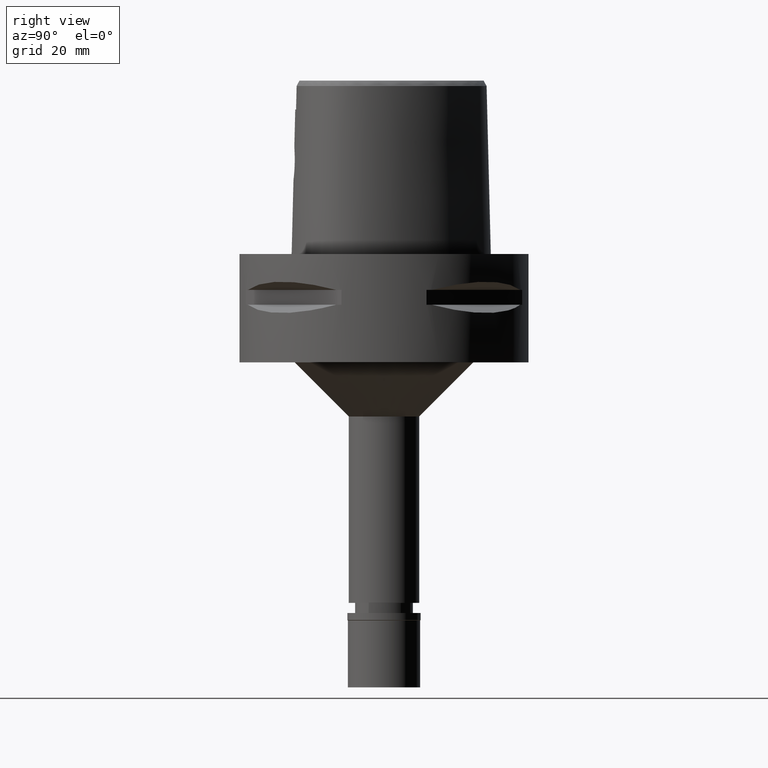
[diagram: clean part render]
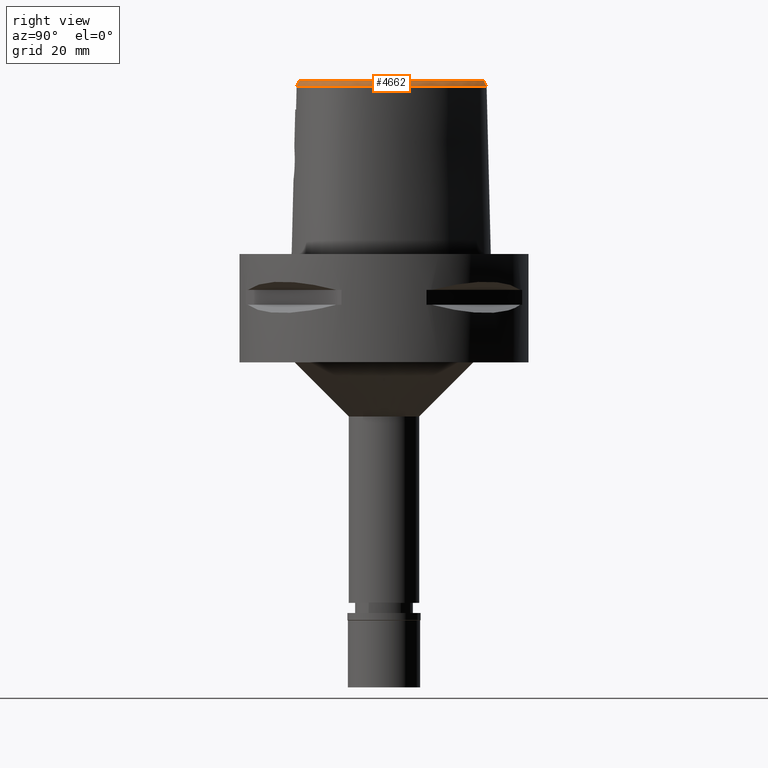
[diagram: same view with one face highlighted and labeled with its STEP entity id]
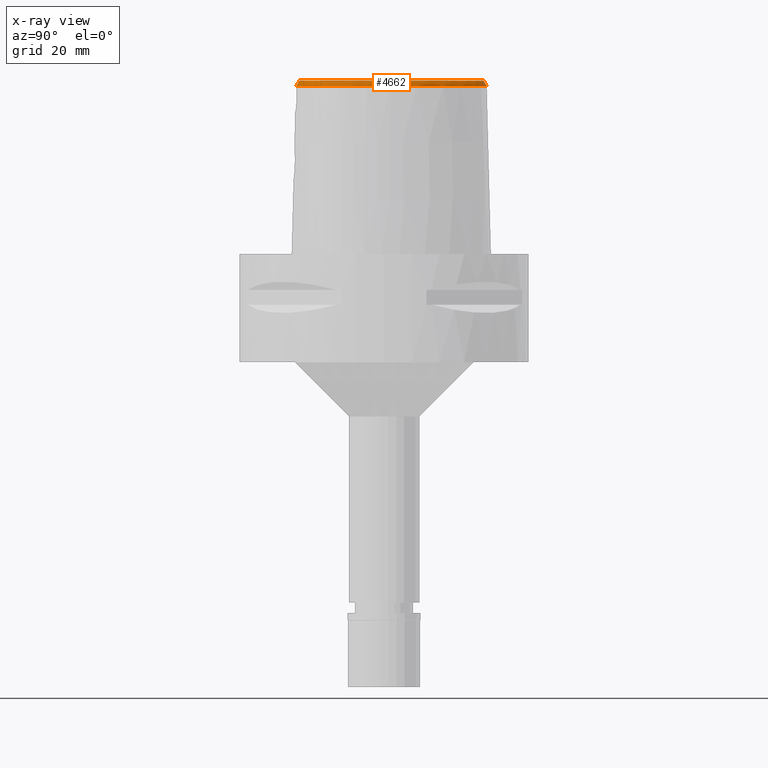
[diagram: x-ray of the same camera — body ghosted, the highlighted face saturated]
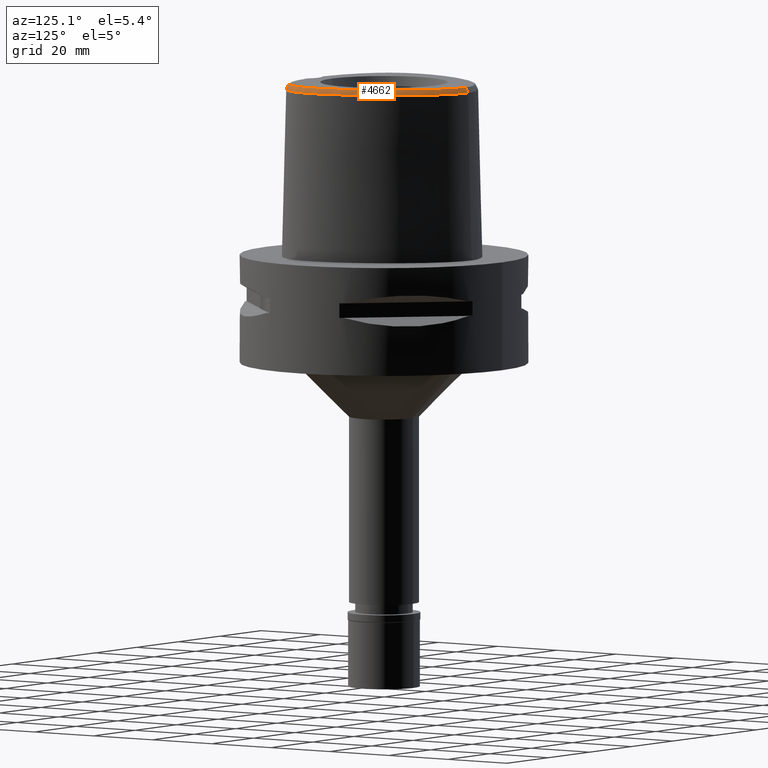
[diagram: same view with one face highlighted and labeled with its STEP entity id]
A machine part, right view. The second image highlights one B-rep face of the part: STEP entity #4662.
The next image is the same camera in x-ray: the body ghosted, the highlighted face saturated — about 0% of this face is hidden behind the body in this view.
A second angle (auxiliary view) of the same face is appended — the face is thin or edge-on in the first view.
In plain terms, the highlighted face is a freeform B-spline surface patch.
Its self-contained STEP definition (entity closure, byte-faithful):
#6 = CARTESIAN_POINT ( 'NONE',  ( 13.85576772161000036, -22.32209122815000057, 46.31441630059000403 ) ) ;
#14 = CARTESIAN_POINT ( 'NONE',  ( 11.07918744940879918, 23.03051546725049903, 48.00000000000628120 ) ) ;
#31 = CARTESIAN_POINT ( 'NONE',  ( 10.90351781564999989, -23.21962009455999976, 46.31441595781000586 ) ) ;
#40 = CARTESIAN_POINT ( 'NONE',  ( 17.68852893098051737, 16.00958332231810388, 48.00000000001046629 ) ) ;
#58 = CARTESIAN_POINT ( 'NONE',  ( 25.22424870847000022, -10.04387941804999862, 48.20627270629000094 ) ) ;
#80 = CARTESIAN_POINT ( 'NONE',  ( 19.47437342419999950, -19.59445845150000309, 46.31441687065999702 ) ) ;
#89 = CARTESIAN_POINT ( 'NONE',  ( 20.51253914624933827, -17.67119446945637051, 47.99999999999860734 ) ) ;
#104 = CARTESIAN_POINT ( 'NONE',  ( 23.00758382300000093, -15.51116720037000007, 47.57565391237000085 ) ) ;
#125 = CARTESIAN_POINT ( 'NONE',  ( 25.11548101324999749, -11.68842953459000178, 47.57565384202999326 ) ) ;
#128 = CARTESIAN_POINT ( 'NONE',  ( 24.69258566271064126, -14.08975149522348325, 46.52069831738066341 ) ) ;
#150 = CARTESIAN_POINT ( 'NONE',  ( 19.91343998928999781, -18.43218803023999897, 47.57565388201999923 ) ) ;
#172 = CARTESIAN_POINT ( 'NONE',  ( 20.28846363325000013, 13.19930123828000035, 46.94503488952000225 ) ) ;
#196 = CARTESIAN_POINT ( 'NONE',  ( 25.62623769317999844, -7.343848543116999750, 48.20627258417000149 ) ) ;
#224 = CARTESIAN_POINT ( 'NONE',  ( 24.70032576391000134, 4.867242925703999745, 46.31441564155999657 ) ) ;
#248 = CARTESIAN_POINT ( 'NONE',  ( 22.16917301694000031, 9.837493690520002332, 46.94503613836000255 ) ) ;
#274 = CARTESIAN_POINT ( 'NONE',  ( 25.84119712001000124, -2.765125388364999992, 47.57565382063999948 ) ) ;
#298 = CARTESIAN_POINT ( 'NONE',  ( 19.54460083040000029, 15.01039940345000190, 46.31441677993999662 ) ) ;
#302 = CARTESIAN_POINT ( 'NONE',  ( 5.613914351056999763, -23.13750946505999906, 48.20627251340000186 ) ) ;
#324 = CARTESIAN_POINT ( 'NONE',  ( 8.965406432694999594, 24.43000248098000071, 48.20627268468999915 ) ) ;
#328 = CARTESIAN_POINT ( 'NONE',  ( 13.50235761773000043, -21.32248574316000145, 48.20627264746000407 ) ) ;
#348 = CARTESIAN_POINT ( 'NONE',  ( 16.77344729585999872, 17.59376904227999816, 47.57565364347999548 ) ) ;
#355 = CARTESIAN_POINT ( 'NONE',  ( 4.448049616147999430, -24.32322031909000160, 46.31441775807000027 ) ) ;
#365 = CARTESIAN_POINT ( 'NONE',  ( 12.14811716929812313, 22.13187320258825608, 48.00000000000350298 ) ) ;
#377 = CARTESIAN_POINT ( 'NONE',  ( 17.59532339224999831, 15.94121193564000016, 48.20627262879000341 ) ) ;
#384 = CARTESIAN_POINT ( 'NONE',  ( 10.81575074685999915, -22.87728721434999812, 46.94503486834999961 ) ) ;
#392 = CARTESIAN_POINT ( 'NONE',  ( -2.553072304996999878E-11, 27.58331912251000162, 48.00000000000000000 ) ) ;
#404 = CARTESIAN_POINT ( 'NONE',  ( 12.30536242051000073, 22.31027902599999990, 47.57565438514999556 ) ) ;
#410 = CARTESIAN_POINT ( 'NONE',  ( 12.43148039263999927, -22.79093464003999969, 46.31441633799000357 ) ) ;
#428 = CARTESIAN_POINT ( 'NONE',  ( 1.474701629074999909, 28.09726120632999979, 46.94503438112000282 ) ) ;
#435 = CARTESIAN_POINT ( 'NONE',  ( 23.74418773913000180, -15.12048386276999956, 46.94503477415999981 ) ) ;
#443 = VERTEX_POINT ( 'NONE', #4578 ) ;
#446 = CARTESIAN_POINT ( 'NONE',  ( 22.45659887780338693, 7.877591736060503891, 48.00000000001048051 ) ) ;
#461 = CARTESIAN_POINT ( 'NONE',  ( 25.88263361629999793, -8.347647910785999770, 47.57565381184999609 ) ) ;
#472 = CARTESIAN_POINT ( 'NONE',  ( 25.74155027847782051, -7.352132003090151358, 48.00000000000957812 ) ) ;
#484 = CARTESIAN_POINT ( 'NONE',  ( 26.25722304522000172, -10.28340957596000038, 46.31441581988000422 ) ) ;
#493 = CARTESIAN_POINT ( 'NONE',  ( 22.82172265263941568, -15.36274108901803004, 48.00000000000577671 ) ) ;
#506 = CARTESIAN_POINT ( 'NONE',  ( 24.21531866421999979, -13.70885405814000180, 47.57565383122999947 ) ) ;
#522 = CARTESIAN_POINT ( 'NONE',  ( -0.5416918147917999526, 28.51943464288000385, 46.31441584485000362 ) ) ;
#530 = CARTESIAN_POINT ( 'NONE',  ( 11.00676983696999933, 22.94040821629999982, 48.20627271301000150 ) ) ;
#534 = CARTESIAN_POINT ( 'NONE',  ( 22.20488947998000029, -16.93994461135999785, 46.94503482277000472 ) ) ;
#548 = CARTESIAN_POINT ( 'NONE',  ( 1.434792815007000177, 27.74604470246000076, 47.57565358290000290 ) ) ;
#558 = CARTESIAN_POINT ( 'NONE',  ( 4.472216720976999405, -24.20009030094000124, 46.52069014668999358 ) ) ;
#562 = CARTESIAN_POINT ( 'NONE',  ( 25.24778593493999779, 3.228870583332999811, 46.31441594303000642 ) ) ;
#564 = CARTESIAN_POINT ( 'NONE',  ( 26.04423705949246681, -10.88022456237710678, 46.52069972612039095 ) ) ;
#585 = CARTESIAN_POINT ( 'NONE',  ( 25.61318496804999967, -4.052864597641999467, 48.20627264257000633 ) ) ;
#602 = CARTESIAN_POINT ( 'NONE',  ( -0.5273145104577999787, 28.16636458666999943, 46.94503479764999554 ) ) ;
#612 = CARTESIAN_POINT ( 'NONE',  ( 25.29775356719000001, -1.488173254418000191, 48.20627267388000092 ) ) ;
#638 = CARTESIAN_POINT ( 'NONE',  ( 25.67254828931999810, -5.221307915878000472, 48.20627270195999614 ) ) ;
#662 = CARTESIAN_POINT ( 'NONE',  ( 25.49042645850000000, -2.808321824967999980, 48.20627266910000230 ) ) ;
#688 = CARTESIAN_POINT ( 'NONE',  ( 6.156089708281999862, 26.00563060993000164, 48.20627263499000037 ) ) ;
#691 = CARTESIAN_POINT ( 'NONE',  ( 17.34854646754000029, -20.42821447669000179, 46.94503487392999830 ) ) ;
#710 = CARTESIAN_POINT ( 'NONE',  ( 6.453958481201000019, 26.64669904928999955, 46.94503514667999866 ) ) ;
#715 = CARTESIAN_POINT ( 'NONE',  ( 12.32872915219000021, -22.45279268088000180, 46.94503510628999976 ) ) ;
#724 = CARTESIAN_POINT ( 'NONE',  ( 25.41171405094078395, -1.468769615953190444, 48.00000000001066525 ) ) ;
#735 = CARTESIAN_POINT ( 'NONE',  ( 9.160033193242998806, 24.72501356603000033, 47.57565378860999772 ) ) ;
#741 = CARTESIAN_POINT ( 'NONE',  ( 7.551502373301000048, -23.92657784618000250, 46.31441589324000319 ) ) ;
#762 = CARTESIAN_POINT ( 'NONE',  ( 16.49748301990000243, 17.37301305296000109, 48.20627275522999611 ) ) ;
#769 = CARTESIAN_POINT ( 'NONE',  ( 17.02210617220000088, -19.80124792960999969, 48.20627268831999857 ) ) ;
#792 = CARTESIAN_POINT ( 'NONE',  ( 7.994549486734999988, 25.03633378518999919, 48.20627267816000483 ) ) ;
#799 = CARTESIAN_POINT ( 'NONE',  ( 12.22597791173000026, -22.11465072172999768, 47.57565387459000306 ) ) ;
#808 = LINE ( 'NONE', #5117, #2869 ) ;
#821 = CARTESIAN_POINT ( 'NONE',  ( 24.15590464747999988, -14.50492984673999963, 46.94503470784999877 ) ) ;
#832 = CARTESIAN_POINT ( 'NONE',  ( 18.76051936065131898, 14.48366014233184451, 48.00000000001169553 ) ) ;
#847 = CARTESIAN_POINT ( 'NONE',  ( 21.81411768448999666, -17.80015916760000039, 46.31441579266999753 ) ) ;
#877 = CARTESIAN_POINT ( 'NONE',  ( 25.53184518854000018, -8.304358813511999671, 48.20627267339000355 ) ) ;
#880 = CARTESIAN_POINT ( 'NONE',  ( 26.30769162470403089, -1.593520748817947696, 46.52070310709583367 ) ) ;
#885 = CARTESIAN_POINT ( 'NONE',  ( 12.15683615293914421, -21.88711351950903605, 48.00000000000229505 ) ) ;
#898 = CARTESIAN_POINT ( 'NONE',  ( 21.10403495925000072, -17.01264307767999995, 48.20627270961999500 ) ) ;
#908 = CARTESIAN_POINT ( 'NONE',  ( 25.33687583872236004, -10.06999584063121489, 48.00000000000807887 ) ) ;
#923 = CARTESIAN_POINT ( 'NONE',  ( 23.55755697201999865, -14.12838855841000019, 48.20627272079999415 ) ) ;
#932 = CARTESIAN_POINT ( 'NONE',  ( 17.07549476912047126, -19.90378693825110545, 48.00000000000873257 ) ) ;
#936 = CARTESIAN_POINT ( 'NONE',  ( 2.121158884820999901, 27.29205911836000098, 48.20627275246999943 ) ) ;
#948 = CARTESIAN_POINT ( 'NONE',  ( 26.68384202929999915, -7.419821370912999647, 46.31441681783000064 ) ) ;
#952 = CARTESIAN_POINT ( 'NONE',  ( 10.99875819582718783, 24.38035098655623045, 46.52071268652620972 ) ) ;
#956 = CARTESIAN_POINT ( 'NONE',  ( 25.78811069500995501, -5.218135357748018954, 48.00000000000882494 ) ) ;
#961 = CARTESIAN_POINT ( 'NONE',  ( -0.7585831992685000413, 27.44546007425000056, 48.20627279006999544 ) ) ;
#973 = CARTESIAN_POINT ( 'NONE',  ( 19.25125645252000339, 14.81333314589999794, 46.94503538290000222 ) ) ;
#996 = CARTESIAN_POINT ( 'NONE',  ( 24.36766813522000064, 4.747954952543000040, 46.94503467040999567 ) ) ;
#1026 = CARTESIAN_POINT ( 'NONE',  ( 25.70114696380999675, 1.648120324581000107, 46.31441598410000182 ) ) ;
#1059 = CARTESIAN_POINT ( 'NONE',  ( 26.54273844305000196, -2.678732515159000016, 46.31441612370999650 ) ) ;
#1078 = VERTEX_POINT ( 'NONE', #558 ) ;
#1084 = CARTESIAN_POINT ( 'NONE',  ( 7.223067442226999368, 25.87192828038000414, 47.57565395894000204 ) ) ;
#1107 = CARTESIAN_POINT ( 'NONE',  ( 13.16245685594999948, 21.04095224770000172, 48.20627217786000784 ) ) ;
#1110 = CARTESIAN_POINT ( 'NONE',  ( 2.899228617551000031, -23.73135529038999891, 47.57565414454000319 ) ) ;
#1132 = CARTESIAN_POINT ( 'NONE',  ( 13.65296209305999930, 21.54986420662000057, 46.94503748460999759 ) ) ;
#1139 = CARTESIAN_POINT ( 'NONE',  ( 2.877316128915999638, -23.37874290397000010, 48.20627251167000082 ) ) ;
#1161 = CARTESIAN_POINT ( 'NONE',  ( 11.67095736452999866, 23.76683855843999993, 46.31441576496000323 ) ) ;
#1167 = CARTESIAN_POINT ( 'NONE',  ( 3.205353447837000491, -24.42027887964999877, 46.31441752143000201 ) ) ;
#1176 = CARTESIAN_POINT ( 'NONE',  ( 1.407937999592147715, 27.50970958195232186, 48.00000000000996181 ) ) ;
#1189 = CARTESIAN_POINT ( 'NONE',  ( 16.18506582175999853, 19.39929566672999783, 46.31441685614000647 ) ) ;
#1195 = CARTESIAN_POINT ( 'NONE',  ( 3.510369640016000048, -24.39873811121000102, 46.31441762035999687 ) ) ;
#1204 = CARTESIAN_POINT ( 'NONE',  ( 19.78466709479843999, 12.88995995782152093, 48.00000000000463984 ) ) ;
#1216 = CARTESIAN_POINT ( 'NONE',  ( 0.7274023336429999986, 28.16058153990000079, 46.94503469549999153 ) ) ;
#1223 = CARTESIAN_POINT ( 'NONE',  ( 18.53683518796000129, -20.17488984836000299, 46.31441624558999592 ) ) ;
#1234 = CARTESIAN_POINT ( 'NONE',  ( 5.331982176208994062, 26.48833275828288336, 48.00000000000657963 ) ) ;
#1248 = CARTESIAN_POINT ( 'NONE',  ( 24.84303073421000008, -12.40231109600000003, 47.57565390589000032 ) ) ;
#1259 = CARTESIAN_POINT ( 'NONE',  ( 24.89096213678608649, -11.60991207239368883, 48.00000000000448352 ) ) ;
#1272 = CARTESIAN_POINT ( 'NONE',  ( 21.70405446930999815, -16.44103285325000030, 48.20627269831999939 ) ) ;
#1280 = CARTESIAN_POINT ( 'NONE',  ( 3.652533226355999751, -23.43985283522000174, 48.00000000000000000 ) ) ;
#1293 = CARTESIAN_POINT ( 'NONE',  ( 23.16802331039999885, -14.71082562100999880, 48.20627270782999574 ) ) ;
#1304 = CARTESIAN_POINT ( 'NONE',  ( 18.95779336836812234, -18.80349047535435147, 48.00000000000593303 ) ) ;
#1319 = CARTESIAN_POINT ( 'NONE',  ( 25.91289826630000093, -10.20356618999000098, 46.94503478202000224 ) ) ;
#1320 = ORIENTED_EDGE ( 'NONE', *, *, #3384, .F. ) ;
#1322 = CARTESIAN_POINT ( 'NONE',  ( 24.48700992950455202, 6.834036305495234664, 46.52070592457526033 ) ) ;
#1329 = CARTESIAN_POINT ( 'NONE',  ( 24.62320007856678572, -12.31148373401217633, 48.00000000000552802 ) ) ;
#1332 = CARTESIAN_POINT ( 'NONE',  ( -0.01606810451700000156, 27.82825454773999851, 47.57565385977000005 ) ) ;
#1343 = CARTESIAN_POINT ( 'NONE',  ( 22.50839767364000110, -16.10265623959000081, 47.57565380392000520 ) ) ;
#1356 = CARTESIAN_POINT ( 'NONE',  ( 25.51037851176826621, -9.222789616917854261, 48.00000000001114842 ) ) ;
#1372 = CARTESIAN_POINT ( 'NONE',  ( 20.58961446247999660, 13.38421394811000020, 46.31441599164000422 ) ) ;
#1398 = CARTESIAN_POINT ( 'NONE',  ( 26.37914535348000200, -5.201909563557999938, 46.94503480416999963 ) ) ;
#1400 = CARTESIAN_POINT ( 'NONE',  ( 4.472216720976999405, -24.20009030094000124, 46.52069014668999358 ) ) ;
#1424 = CARTESIAN_POINT ( 'NONE',  ( 21.53881917024000003, 9.517812918844999359, 48.20627244109000031 ) ) ;
#1448 = CARTESIAN_POINT ( 'NONE',  ( 20.64754377434999810, 11.19007645075999946, 48.20627267736000476 ) ) ;
#1483 = CARTESIAN_POINT ( 'NONE',  ( 17.04941157181999856, 17.81452503160000234, 46.94503453173000196 ) ) ;
#1506 = CARTESIAN_POINT ( 'NONE',  ( 9.354659953790999793, 25.02002465109000084, 46.94503489252999628 ) ) ;
#1510 = CARTESIAN_POINT ( 'NONE',  ( 19.28110797799999787, -19.29853766031000006, 46.94503543967000780 ) ) ;
#1530 = CARTESIAN_POINT ( 'NONE',  ( 15.91870748747999720, 19.16703556634000094, 46.94503543057999906 ) ) ;
#1534 = CARTESIAN_POINT ( 'NONE',  ( 15.94834798111000040, -20.32909738905000196, 48.20627263449000566 ) ) ;
#1559 = CARTESIAN_POINT ( 'NONE',  ( 10.17911414033000028, 24.01852594528000040, 47.57565372996999997 ) ) ;
#1566 = CARTESIAN_POINT ( 'NONE',  ( 7.435284225954000625, -23.22940249919999900, 47.57565376262000001 ) ) ;
#1575 = CARTESIAN_POINT ( 'NONE',  ( 4.491298471527593428, 26.80158405531564725, 48.00000000000893152 ) ) ;
#1588 = CARTESIAN_POINT ( 'NONE',  ( 10.59585947207999901, 24.58944815622000135, 46.31441576353000045 ) ) ;
#1596 = CARTESIAN_POINT ( 'NONE',  ( 3.157570542500000244, -23.71530004088000254, 47.57565417252000373 ) ) ;
#1605 = CARTESIAN_POINT ( 'NONE',  ( 15.47311546589700981, 18.77848662925425671, 48.00000000000688516 ) ) ;
#1624 = CARTESIAN_POINT ( 'NONE',  ( 10.72798367806000108, -22.53495433414000004, 47.57565377887999603 ) ) ;
#1652 = CARTESIAN_POINT ( 'NONE',  ( 25.39652794868000285, -9.202675628400999841, 48.20627271341000153 ) ) ;
#1673 = CARTESIAN_POINT ( 'NONE',  ( 25.69749984853999791, -11.02866465713000110, 46.94503484132999915 ) ) ;
#1676 = CARTESIAN_POINT ( 'NONE',  ( 26.66096789088750540, -6.450661550929090104, 46.52070141660812652 ) ) ;
#1681 = CARTESIAN_POINT ( 'NONE',  ( 25.72845965679329794, -4.044145215521676384, 48.00000000001287503 ) ) ;
#1695 = CARTESIAN_POINT ( 'NONE',  ( 19.70541206800000111, -18.14644434478000079, 48.20627263926999717 ) ) ;
#1698 = CARTESIAN_POINT ( 'NONE',  ( 11.70978320535028416, -23.05272019185246890, 46.52069240067365286 ) ) ;
#1721 = CARTESIAN_POINT ( 'NONE',  ( 20.66228593392999713, -17.85597519514000098, 47.57565373586000135 ) ) ;
#1746 = CARTESIAN_POINT ( 'NONE',  ( 20.43974794160000030, -17.58137343338000136, 48.20627271031000305 ) ) ;
#1755 = CARTESIAN_POINT ( 'NONE',  ( 22.33100613406630330, -15.94420923685427383, 48.00000000000813571 ) ) ;
#1758 = CARTESIAN_POINT ( 'NONE',  ( -0.8228285758891999979, 28.50331251735000038, 46.31441513528000087 ) ) ;
#1769 = CARTESIAN_POINT ( 'NONE',  ( 25.64615468763999928, -1.428852258583000134, 47.57565381084000222 ) ) ;
#1772 = CARTESIAN_POINT ( 'NONE',  ( 23.53784508589368940, -15.81022840325322143, 46.52069747213678141 ) ) ;
#1784 = CARTESIAN_POINT ( 'NONE',  ( 0.7475221227289999826, 28.51349026752000171, 46.31441568163999989 ) ) ;
#1794 = CARTESIAN_POINT ( 'NONE',  ( 25.96560388902999961, -4.026207616200999873, 47.57565387526000222 ) ) ;
#1818 = CARTESIAN_POINT ( 'NONE',  ( 23.72947530737999955, 6.418003208165000473, 46.94503559510000201 ) ) ;
#1844 = CARTESIAN_POINT ( 'NONE',  ( 25.99455580808999855, -1.369531262746999989, 46.94503494781000086 ) ) ;
#1868 = CARTESIAN_POINT ( 'NONE',  ( 23.70235287783999922, 4.509379006223000808, 48.20627272811999831 ) ) ;
#1895 = CARTESIAN_POINT ( 'NONE',  ( 4.798468645244000186, 27.69501123654000097, 46.31441637801999889 ) ) ;
#1901 = CARTESIAN_POINT ( 'NONE',  ( 5.657343974758999749, -23.48822591805999949, 47.57565414097999934 ) ) ;
#1922 = CARTESIAN_POINT ( 'NONE',  ( 11.44956152201000066, 23.49136177772000167, 46.94503474764000117 ) ) ;
#1938 = CARTESIAN_POINT ( 'NONE',  ( 6.204805495149085637, 26.11047595223612561, 48.00000000000840572 ) ) ;
#1949 = CARTESIAN_POINT ( 'NONE',  ( 2.950165194460999896, 27.48792389231000044, 47.57565386639999616 ) ) ;
#1957 = CARTESIAN_POINT ( 'NONE',  ( 10.64021660927000035, -22.19262145393000196, 48.20627268942000399 ) ) ;
#1966 = CARTESIAN_POINT ( 'NONE',  ( 13.24267791555831586, 21.12418368643672295, 48.00000000000435563 ) ) ;
#1977 = CARTESIAN_POINT ( 'NONE',  ( 17.88027228907000321, 16.15023761666000013, 47.57565390360000634 ) ) ;
#1984 = CARTESIAN_POINT ( 'NONE',  ( 17.18532631987000059, -20.11473120315000074, 47.57565378112999355 ) ) ;
#2003 = CARTESIAN_POINT ( 'NONE',  ( 9.970741474462000653, 23.73306483981999904, 48.20627271318999618 ) ) ;
#2008 = CARTESIAN_POINT ( 'NONE',  ( 14.77627567637000006, -20.83805695997000029, 48.20627268951000133 ) ) ;
#2016 = CARTESIAN_POINT ( 'NONE',  ( 3.680297990135618758, 27.05591354499868118, 48.00000000000430589 ) ) ;
#2033 = CARTESIAN_POINT ( 'NONE',  ( 24.83424146823000100, -14.05052644047000143, 46.31441616575000353 ) ) ;
#2059 = CARTESIAN_POINT ( 'NONE',  ( 23.85673080975000104, -14.31665920256999947, 47.57565371431999779 ) ) ;
#2083 = CARTESIAN_POINT ( 'NONE',  ( 20.32949583187999920, -19.00367540116999976, 46.31441636753000068 ) ) ;
#2086 = CARTESIAN_POINT ( 'NONE',  ( 17.84219066874068460, -20.48406917474394007, 46.52069465465723397 ) ) ;
#2091 = CARTESIAN_POINT ( 'NONE',  ( 7.396182376302800066, -22.99483633013773343, 48.00000000000392930 ) ) ;
#2103 = CARTESIAN_POINT ( 'NONE',  ( 25.56857348739000102, -10.12372280401999980, 47.57565374416000026 ) ) ;
#2107 = CARTESIAN_POINT ( 'NONE',  ( -1.276312217242000094E-11, 28.41206021534999593, 46.52071719450999154 ) ) ;
#2117 = CARTESIAN_POINT ( 'NONE',  ( -0.7799983248087999366, 27.79807755527999902, 47.57565357181000110 ) ) ;
#2133 = CARTESIAN_POINT ( 'NONE',  ( 22.73137641751999993, -15.29059185887999917, 48.20627262451999684 ) ) ;
#2144 = CARTESIAN_POINT ( 'NONE',  ( 15.99678577414464442, -20.43406366492974868, 48.00000000000594014 ) ) ;
#2150 = EDGE_CURVE ( 'NONE', #443, #2220, #3716, .T. ) ;
#2162 = CARTESIAN_POINT ( 'NONE',  ( 23.07481741179999801, 6.151585679507000748, 48.20627254731000733 ) ) ;
#2166 = CARTESIAN_POINT ( 'NONE',  ( 24.33934953590062378, -14.68006085516705461, 46.52069803563267669 ) ) ;
#2171 = CARTESIAN_POINT ( 'NONE',  ( 3.695072017992939273, -23.43648746218602952, 48.00000000000765255 ) ) ;
#2174 = CARTESIAN_POINT ( 'NONE',  ( -0.8014134503490000228, 28.15069503631999837, 46.94503435354000231 ) ) ;
#2184 = CARTESIAN_POINT ( 'NONE',  ( 26.67044173096999771, -3.972893653318999352, 46.31441634063000379 ) ) ;
#2192 = ORIENTED_EDGE ( 'NONE', *, *, #2988, .T. ) ;
#2214 = CARTESIAN_POINT ( 'NONE',  ( 23.40214635958999878, 6.284794443835999722, 47.57565407119999890 ) ) ;
#2220 = VERTEX_POINT ( 'NONE', #1280 ) ;
#2240 = B_SPLINE_SURFACE_WITH_KNOTS ( 'NONE', 3, 3, ( 
 ( #1139, #1110, #2813, #2402 ),
 ( #3888, #1596, #4325, #1167 ),
 ( #3865, #2733, #5078, #1195 ),
 ( #3969, #3942, #5102, #355 ),
 ( #302, #1901, #3119, #4768 ),
 ( #4300, #1566, #3175, #741 ),
 ( #2374, #2346, #2711, #3914 ),
 ( #1957, #1624, #384, #31 ),
 ( #4275, #799, #715, #410 ),
 ( #328, #3556, #3498, #6 ),
 ( #2008, #3201, #2787, #3580 ),
 ( #1534, #4355, #4659, #3094 ),
 ( #769, #1984, #691, #3150 ),
 ( #3524, #4713, #2759, #1223 ),
 ( #3472, #5049, #1510, #80 ),
 ( #1695, #150, #3655, #2083 ),
 ( #1746, #1721, #3317, #3702 ),
 ( #898, #4890, #4869, #847 ),
 ( #1272, #4428, #534, #3274 ),
 ( #2450, #1343, #4381, #4798 ),
 ( #2133, #104, #4845, #3676 ),
 ( #1293, #2887, #435, #3995 ),
 ( #923, #2059, #821, #4402 ),
 ( #2909, #506, #3633, #2033 ),
 ( #4477, #2524, #4451, #4042 ),
 ( #4820, #1248, #2427, #4090 ),
 ( #4018, #125, #2499, #4067 ),
 ( #3608, #3250, #1673, #3298 ),
 ( #58, #2103, #1319, #484 ),
 ( #1652, #3229, #2863, #2837 ),
 ( #877, #461, #2477, #4941 ),
 ( #196, #3343, #2658, #948 ),
 ( #3780, #4145, #2576, #4172 ),
 ( #638, #4219, #1398, #2241 ),
 ( #585, #1794, #2990, #2184 ),
 ( #662, #274, #3804, #1059 ),
 ( #612, #1769, #1844, #3415 ),
 ( #3013, #4577, #5020, #4553 ),
 ( #4995, #2550, #4603, #1026 ),
 ( #2600, #3365, #4121, #562 ),
 ( #1868, #3444, #996, #224 ),
 ( #2162, #2214, #1818, #4916 ),
 ( #3726, #3391, #4970, #3751 ),
 ( #1424, #2265, #248, #3830 ),
 ( #1448, #2630, #4196, #3037 ),
 ( #2933, #4500, #172, #1372 ),
 ( #2959, #4530, #973, #298 ),
 ( #377, #1977, #2707, #3573 ),
 ( #762, #348, #1483, #4680 ),
 ( #3146, #2369, #1530, #1189 ),
 ( #2728, #3169, #4654, #3550 ),
 ( #1107, #3065, #1132, #4704 ),
 ( #5097, #404, #4628, #2782 ),
 ( #530, #3885, #1922, #1161 ),
 ( #2003, #1559, #5043, #1588 ),
 ( #324, #735, #1506, #3113 ),
 ( #792, #2680, #2754, #4293 ),
 ( #4244, #1084, #3494, #4734 ),
 ( #688, #3090, #710, #2341 ),
 ( #3935, #4348, #2395, #3963 ),
 ( #2288, #5071, #3859, #1895 ),
 ( #3468, #4270, #2317, #3907 ),
 ( #4319, #1949, #3519, #3196 ),
 ( #936, #4543, #4878, #2807 ),
 ( #3714, #548, #428, #4760 ),
 ( #4465, #4133, #1216, #1784 ),
 ( #4487, #1332, #2511, #4375 ),
 ( #4078, #4160, #602, #522 ),
 ( #961, #2117, #2174, #1758 ) ),
 .UNSPECIFIED., .F., .F., .F.,
 ( 4, 1, 1, 1, 1, 1, 1, 1, 1, 1, 1, 1, 1, 1, 1, 1, 1, 1, 1, 1, 1, 1, 1, 1, 1, 1, 1, 1, 1, 1, 1, 1, 1, 1, 1, 1, 1, 1, 1, 1, 1, 1, 1, 1, 1, 1, 1, 1, 1, 1, 1, 1, 1, 1, 1, 1, 1, 1, 1, 1, 1, 1, 1, 1, 1, 1, 4 ),
 ( 4, 4 ),
 ( -0.006501344654136999822, 0.0000000000000000000, 0.001084806278982999904, 0.01694060300470999827, 0.03279639973041999917, 0.04865219645615000144, 0.06450799318185999887, 0.08036378990756999630, 0.09621958663328000760, 0.1120753833589999970, 0.1279311800848000058, 0.1437869768104999835, 0.1596427735361999889, 0.1754985702619000221, 0.1913543669875999997, 0.2072101637133000052, 0.2230659604390000106, 0.2389217571648000193, 0.2547775538904999970, 0.2706333506161999747, 0.2864891473419000079, 0.3023449440675999855, 0.3182007407932999632, 0.3340565375190999720, 0.3499123342448000051, 0.3657681309706000139, 0.3816239276962999916, 0.3974797244219999692, 0.4133355211477000024, 0.4291913178734000356, 0.4450471145992000443, 0.4609029113249000220, 0.4767587080505999997, 0.4926145047763000329, 0.5084703015020000105, 0.5243260982276999327, 0.5401818949534999970, 0.5560376916792000301, 0.5718934884048999523, 0.5877492851305999855, 0.6036050818563000187, 0.6194608785820000518, 0.6353166753076999740, 0.6511724720334999272, 0.6670282687592000714, 0.6828840654848999936, 0.6987398622106000268, 0.7145956589363000599, 0.7304514556619999821, 0.7463072523879000775, 0.7621630491135999996, 0.7780188458392999218, 0.7938746425650000660, 0.8097304392906999881, 0.8255862360164000213, 0.8414420327421000545, 0.8572978294679000077, 0.8731536261936000409, 0.8890094229192999631, 0.9048652196450001073, 0.9207210163707000294, 0.9365768130963999516, 0.9524326098222000159, 0.9682884065478999380, 0.9841442032736000822, 1.000000000000000000, 1.017074182962999895 ),
 ( -0.1148445382156999955, 1.114844538211000158 ),
 .UNSPECIFIED. ) ;
#2241 = CARTESIAN_POINT ( 'NONE',  ( 26.73244388555999862, -5.192210387397000027, 46.31441585526999916 ) ) ;
#2244 = EDGE_LOOP ( 'NONE', ( #4306, #2192, #2747, #1320 ) ) ;
#2265 = CARTESIAN_POINT ( 'NONE',  ( 21.85399609359000195, 9.677653304683000002, 47.57565428972999655 ) ) ;
#2288 = CARTESIAN_POINT ( 'NONE',  ( 4.453708641385000000, 26.69225125264999932, 48.20627263799000417 ) ) ;
#2295 = FACE_OUTER_BOUND ( 'NONE', #2244, .T. ) ;
#2317 = CARTESIAN_POINT ( 'NONE',  ( 3.842497269659999937, 27.62454164999000028, 46.94503529637000128 ) ) ;
#2332 = CARTESIAN_POINT ( 'NONE',  ( 0.2325907962420787067, 27.58331912251247076, 48.00000000000036948 ) ) ;
#2341 = CARTESIAN_POINT ( 'NONE',  ( 6.602892867660000498, 26.96723326897999939, 46.31441640253000003 ) ) ;
#2346 = CARTESIAN_POINT ( 'NONE',  ( 9.128717418200000822, -22.90916907799999791, 47.57565378003000234 ) ) ;
#2369 = CARTESIAN_POINT ( 'NONE',  ( 15.65234915320000120, 18.93477546593999961, 47.57565400502999609 ) ) ;
#2374 = CARTESIAN_POINT ( 'NONE',  ( 9.055823579827999126, -22.56336755032000241, 48.20627268886000394 ) ) ;
#2395 = CARTESIAN_POINT ( 'NONE',  ( 5.553240661798000133, 27.03666571879000102, 46.94503483179000369 ) ) ;
#2402 = CARTESIAN_POINT ( 'NONE',  ( 2.943053594822000019, -24.43658006324999832, 46.31441741028000081 ) ) ;
#2427 = CARTESIAN_POINT ( 'NONE',  ( 25.16972003095999710, -12.53728920871999897, 46.94503518409999288 ) ) ;
#2436 = CARTESIAN_POINT ( 'NONE',  ( 21.64191216433157194, 9.570096010442041390, 48.00000000000741096 ) ) ;
#2450 = CARTESIAN_POINT ( 'NONE',  ( 22.24477694638000003, -15.86718889885000294, 48.20627267724000120 ) ) ;
#2477 = CARTESIAN_POINT ( 'NONE',  ( 26.23342204405999922, -8.390937008059999869, 46.94503495032000018 ) ) ;
#2479 = CARTESIAN_POINT ( 'NONE',  ( 23.08984995679885444, -16.35075897049731708, 46.52069719038884443 ) ) ;
#2499 = CARTESIAN_POINT ( 'NONE',  ( 25.44913745277999695, -11.80511396350000020, 46.94503502535000194 ) ) ;
#2507 = CARTESIAN_POINT ( 'NONE',  ( 24.00708073425193945, -13.59389763843173604, 48.00000000001132605 ) ) ;
#2511 = CARTESIAN_POINT ( 'NONE',  ( -0.01660976143001999944, 28.18175391724999912, 46.94503506946000471 ) ) ;
#2524 = CARTESIAN_POINT ( 'NONE',  ( 24.54235765206999886, -13.07510636839999840, 47.57565364963999599 ) ) ;
#2550 = CARTESIAN_POINT ( 'NONE',  ( 25.01773975853999943, 1.467737915924000047, 47.57565378548999746 ) ) ;
#2554 = CARTESIAN_POINT ( 'NONE',  ( 13.63304938780016506, 22.11238814014133780, 46.52071155953436232 ) ) ;
#2561 = CARTESIAN_POINT ( 'NONE',  ( 25.79052179444915183, -6.319355031379888743, 48.00000000001120526 ) ) ;
#2576 = CARTESIAN_POINT ( 'NONE',  ( 26.38165028558999836, -6.332153478601999730, 46.94503524705000075 ) ) ;
#2600 = CARTESIAN_POINT ( 'NONE',  ( 24.23541618143000065, 2.913998150782999730, 48.20627269122000058 ) ) ;
#2630 = CARTESIAN_POINT ( 'NONE',  ( 20.95594806305999924, 11.36261933217000042, 47.57565380369000252 ) ) ;
#2658 = CARTESIAN_POINT ( 'NONE',  ( 26.33130725059000099, -7.394497094981000274, 46.94503540660999619 ) ) ;
#2680 = CARTESIAN_POINT ( 'NONE',  ( 8.174673702276999521, 25.34042351069000176, 47.57565380199999794 ) ) ;
#2683 = CARTESIAN_POINT ( 'NONE',  ( 3.936599514315000103, -23.66696150443999969, 47.55493119071000763 ) ) ;
#2707 = CARTESIAN_POINT ( 'NONE',  ( 18.16522118589000101, 16.35926329767999832, 46.94503517840999507 ) ) ;
#2710 = CARTESIAN_POINT ( 'NONE',  ( 4.210218701066999358, -23.91964375277999721, 47.06289846610999916 ) ) ;
#2711 = CARTESIAN_POINT ( 'NONE',  ( 9.201611256572000741, -23.25497060569000141, 46.94503487121000518 ) ) ;
#2728 = CARTESIAN_POINT ( 'NONE',  ( 14.27055032832999970, 19.92639960196000004, 48.20627224234999630 ) ) ;
#2733 = CARTESIAN_POINT ( 'NONE',  ( 3.457960178102000182, -23.69408575515999971, 47.57565419742000756 ) ) ;
#2747 = ORIENTED_EDGE ( 'NONE', *, *, #2150, .T. ) ;
#2754 = CARTESIAN_POINT ( 'NONE',  ( 8.354797917819000830, 25.64451323617999989, 46.94503492583999815 ) ) ;
#2759 = CARTESIAN_POINT ( 'NONE',  ( 18.35852082132999996, -19.86973301405000214, 46.94503504845999942 ) ) ;
#2782 = CARTESIAN_POINT ( 'NONE',  ( 12.77272526750000026, 22.84053512534000063, 46.31441836605999640 ) ) ;
#2787 = CARTESIAN_POINT ( 'NONE',  ( 15.04214548719000000, -21.49298620251000003, 46.94503486786000224 ) ) ;
#2796 = CARTESIAN_POINT ( 'NONE',  ( 20.74842146925181297, 11.24651447314018071, 48.00000000001330136 ) ) ;
#2807 = CARTESIAN_POINT ( 'NONE',  ( 2.299317471958000070, 28.33740497555000104, 46.31441544254000320 ) ) ;
#2813 = CARTESIAN_POINT ( 'NONE',  ( 2.921141106187000069, -24.08396767681999862, 46.94503577740999845 ) ) ;
#2837 = CARTESIAN_POINT ( 'NONE',  ( 26.44072315842999998, -9.387153683564999795, 46.31441576174999852 ) ) ;
#2846 = CARTESIAN_POINT ( 'NONE',  ( 23.65541542674957398, -14.18997106324508373, 48.00000000001205791 ) ) ;
#2863 = CARTESIAN_POINT ( 'NONE',  ( 26.09265808851000301, -9.325660998509999189, 46.94503474564000101 ) ) ;
#2865 = CARTESIAN_POINT ( 'NONE',  ( 5.530043876418369919, 27.35846726636281545, 46.52071494050980505 ) ) ;
#2869 = VECTOR ( 'NONE', #4005, 1000.000000000000114 ) ;
#2870 = CARTESIAN_POINT ( 'NONE',  ( 21.78596494080999335, -16.52262878099936216, 48.00000000000353140 ) ) ;
#2887 = CARTESIAN_POINT ( 'NONE',  ( 23.45610552476000166, -14.91565474189000007, 47.57565374098999911 ) ) ;
#2893 = CARTESIAN_POINT ( 'NONE',  ( 25.12949508357631601, -10.86427360166579703, 48.00000000000397193 ) ) ;
#2909 = CARTESIAN_POINT ( 'NONE',  ( 23.90585726220999874, -13.53801786696999798, 48.20627266397000454 ) ) ;
#2915 = CARTESIAN_POINT ( 'NONE',  ( 25.64658655007773191, -8.318518488027708102, 48.00000000001132605 ) ) ;
#2933 = CARTESIAN_POINT ( 'NONE',  ( 19.68616197479000363, 12.82947581862999797, 48.20627268527000098 ) ) ;
#2941 = CARTESIAN_POINT ( 'NONE',  ( 14.81975810291421070, -20.94516920634564983, 48.00000000000877520 ) ) ;
#2959 = CARTESIAN_POINT ( 'NONE',  ( 18.66456769675999894, 14.41920063080000070, 48.20627258881000188 ) ) ;
#2988 = EDGE_CURVE ( 'NONE', #3246, #443, #808, .T. ) ;
#2990 = CARTESIAN_POINT ( 'NONE',  ( 26.31802281000000221, -3.999550634759999834, 46.94503510794000078 ) ) ;
#2992 = CARTESIAN_POINT ( 'NONE',  ( 4.386257961985999820, -24.10398158145000025, 46.70608465737999637 ) ) ;
#3013 = CARTESIAN_POINT ( 'NONE',  ( 25.02832785316999775, -0.09168243794376999822, 48.20627262092000365 ) ) ;
#3037 = CARTESIAN_POINT ( 'NONE',  ( 21.57275664046999708, 11.70770509498999878, 46.31441605634999803 ) ) ;
#3042 = CARTESIAN_POINT ( 'NONE',  ( 4.472216720976999405, -24.20009030094000124, 46.52069014668999358 ) ) ;
#3065 = CARTESIAN_POINT ( 'NONE',  ( 13.40770947449999895, 21.29540822715999582, 47.57565483123999428 ) ) ;
#3090 = CARTESIAN_POINT ( 'NONE',  ( 6.305024094742000429, 26.32616482960999704, 47.57565389084000174 ) ) ;
#3094 = CARTESIAN_POINT ( 'NONE',  ( 16.39260148398999917, -21.29180920603999994, 46.31441640661000037 ) ) ;
#3105 = CARTESIAN_POINT ( 'NONE',  ( 14.35433142683483254, 20.00604447574464118, 48.00000000000090239 ) ) ;
#3113 = CARTESIAN_POINT ( 'NONE',  ( 9.549286714340000870, 25.31503573614000047, 46.31441599645000196 ) ) ;
#3119 = CARTESIAN_POINT ( 'NONE',  ( 5.700773598461000624, -23.83894237105999991, 46.94503576856999416 ) ) ;
#3137 = CARTESIAN_POINT ( 'NONE',  ( 2.140583849880608902, 27.40603513869852748, 48.00000000000906653 ) ) ;
#3146 = CARTESIAN_POINT ( 'NONE',  ( 15.38599081891999987, 18.70251536555000271, 48.20627257948000022 ) ) ;
#3150 = CARTESIAN_POINT ( 'NONE',  ( 17.51176661521000000, -20.74169775022000195, 46.31441596674000749 ) ) ;
#3159 = CARTESIAN_POINT ( 'NONE',  ( 23.18188527997333637, 6.195157684106668228, 48.00000000000377298 ) ) ;
#3169 = CARTESIAN_POINT ( 'NONE',  ( 14.52668673308000002, 20.16989069950000157, 47.57565469856000107 ) ) ;
#3175 = CARTESIAN_POINT ( 'NONE',  ( 7.493393299626999848, -23.57799017269000075, 46.94503482793000160 ) ) ;
#3185 = CARTESIAN_POINT ( 'NONE',  ( 2.897393261679669596, 27.25600202852874432, 48.00000000000189004 ) ) ;
#3196 = CARTESIAN_POINT ( 'NONE',  ( 3.107013433471000230, 28.17723986021000115, 46.31441630548000177 ) ) ;
#3201 = CARTESIAN_POINT ( 'NONE',  ( 14.90921058178000003, -21.16552158124000016, 47.57565377867999956 ) ) ;
#3212 = CARTESIAN_POINT ( 'NONE',  ( 8.053467330374205702, 25.13580020532306492, 47.99999999999884182 ) ) ;
#3229 = CARTESIAN_POINT ( 'NONE',  ( 25.74459301859000249, -9.264168313455998671, 47.57565372951999905 ) ) ;
#3237 = CARTESIAN_POINT ( 'NONE',  ( 10.66892483387011836, -22.30459704282058908, 48.00000000001362110 ) ) ;
#3246 = VERTEX_POINT ( 'NONE', #3319 ) ;
#3250 = CARTESIAN_POINT ( 'NONE',  ( 25.35796773008000216, -10.93039779959000235, 47.57565376800999957 ) ) ;
#3253 = CARTESIAN_POINT ( 'NONE',  ( 26.56868348264447022, -7.988862950299366439, 46.52070085311222414 ) ) ;
#3258 = CARTESIAN_POINT ( 'NONE',  ( 5.628119991153109680, -23.25222728396831684, 48.00000000001031708 ) ) ;
#3274 = CARTESIAN_POINT ( 'NONE',  ( 22.45530698530999913, -17.18940049040999796, 46.31441588499000517 ) ) ;
#3298 = CARTESIAN_POINT ( 'NONE',  ( 26.03703196700000078, -11.12693151466000074, 46.31441591465000585 ) ) ;
#3317 = CARTESIAN_POINT ( 'NONE',  ( 20.88482392625000017, -18.13057695690000415, 46.94503476140999965 ) ) ;
#3319 = CARTESIAN_POINT ( 'NONE',  ( -1.276312217242000094E-11, 28.41206021534999593, 46.52071719450999154 ) ) ;
#3325 = CARTESIAN_POINT ( 'NONE',  ( 3.652533226355999751, -23.43985283522000174, 48.00000000000000000 ) ) ;
#3343 = CARTESIAN_POINT ( 'NONE',  ( 25.97877247187999927, -7.369172819049000012, 47.57565399538999884 ) ) ;
#3347 = CARTESIAN_POINT ( 'NONE',  ( 21.61408639850543878, -17.89738970855057687, 46.52069634514500507 ) ) ;
#3365 = CARTESIAN_POINT ( 'NONE',  ( 24.57287276594000147, 3.018955628300000082, 47.57565377515999927 ) ) ;
#3369 = EDGE_CURVE ( 'NONE', #3246, #1078, #3549, .T. ) ;
#3384 = EDGE_CURVE ( 'NONE', #1078, #2220, #3858, .T. ) ;
#3391 = CARTESIAN_POINT ( 'NONE',  ( 22.67293324715999958, 7.976325528093001438, 47.57565441061999678 ) ) ;
#3415 = CARTESIAN_POINT ( 'NONE',  ( 26.34295692853999782, -1.310210266912000154, 46.31441608476999505 ) ) ;
#3444 = CARTESIAN_POINT ( 'NONE',  ( 24.03501050652999638, 4.628666979382999536, 47.57565369926000187 ) ) ;
#3468 = CARTESIAN_POINT ( 'NONE',  ( 3.648583878831999527, 26.94473219409999842, 48.20627260572000239 ) ) ;
#3472 = CARTESIAN_POINT ( 'NONE',  ( 18.89457708561999993, -18.70669607793000111, 48.20627257769999829 ) ) ;
#3494 = CARTESIAN_POINT ( 'NONE',  ( 7.387958657738000312, 26.18454654287999972, 46.94503531600000201 ) ) ;
#3498 = CARTESIAN_POINT ( 'NONE',  ( 13.73796435364999979, -21.98888939981999968, 46.94503508288000404 ) ) ;
#3519 = CARTESIAN_POINT ( 'NONE',  ( 3.028589313965999619, 27.83258187625999724, 46.94503508593999896 ) ) ;
#3524 = CARTESIAN_POINT ( 'NONE',  ( 18.00189208806000352, -19.25941934543000045, 48.20627265419000196 ) ) ;
#3539 = CARTESIAN_POINT ( 'NONE',  ( 0.6937438505403475952, 27.57019898700802685, 48.00000000000102318 ) ) ;
#3549 = B_SPLINE_CURVE_WITH_KNOTS ( 'NONE', 3,
 ( #2107, #4823, #3678, #2865, #4432, #952, #2554, #3757, #1322, #880, #4124, #1676, #3253, #564, #4871, #128, #2166, #1772, #2479, #3347, #4919, #2086, #3658, #1698, #4945, #1400 ),
 .UNSPECIFIED., .F., .F.,
 ( 4, 2, 2, 2, 2, 2, 2, 2, 2, 2, 2, 2, 4 ),
 ( 0.0000000000000000000, 0.06250000000000013878, 0.1250000000000002498, 0.2500000000000003886, 0.5000000000000007772, 0.5625000000000007772, 0.6250000000000007772, 0.6875000000000008882, 0.7187500000000008882, 0.7500000000000009992, 0.8125000000000007772, 0.8750000000000005551, 1.000000000000000000 ),
 .UNSPECIFIED. ) ;
#3550 = CARTESIAN_POINT ( 'NONE',  ( 15.03895954260000067, 20.65687289458000109, 46.31441961095999460 ) ) ;
#3556 = CARTESIAN_POINT ( 'NONE',  ( 13.62016098569000100, -21.65568757149000234, 47.57565386517000405 ) ) ;
#3565 = CARTESIAN_POINT ( 'NONE',  ( 7.112111422624279200, 25.66156608519059645, 48.00000000000407852 ) ) ;
#3573 = CARTESIAN_POINT ( 'NONE',  ( 18.45017008270999881, 16.56828897869000272, 46.31441645321999800 ) ) ;
#3580 = CARTESIAN_POINT ( 'NONE',  ( 15.17508039259999997, -21.82045082376999900, 46.31441595703999781 ) ) ;
#3591 = CARTESIAN_POINT ( 'NONE',  ( 10.03889926273809685, 23.82643791975830538, 48.00000000000996891 ) ) ;
#3608 = CARTESIAN_POINT ( 'NONE',  ( 25.01843561161000196, -10.83213094205999916, 48.20627269468999998 ) ) ;
#3619 = CARTESIAN_POINT ( 'NONE',  ( 24.34579675530948961, 2.948329282943650931, 48.00000000000770228 ) ) ;
#3633 = CARTESIAN_POINT ( 'NONE',  ( 24.52478006623000084, -13.87969024930000117, 46.94503499849000150 ) ) ;
#3642 = CARTESIAN_POINT ( 'NONE',  ( 9.079666835764129473, -22.67647771863802575, 48.00000000001297451 ) ) ;
#3655 = CARTESIAN_POINT ( 'NONE',  ( 20.12146791058000161, -18.71793171570000069, 46.94503512477999152 ) ) ;
#3658 = CARTESIAN_POINT ( 'NONE',  ( 16.39076485917539827, -21.20751266143117064, 46.52069409116137422 ) ) ;
#3676 = CARTESIAN_POINT ( 'NONE',  ( 23.55999863394999849, -15.95231788335000189, 46.31441648805999733 ) ) ;
#3678 = CARTESIAN_POINT ( 'NONE',  ( 2.760678900604209396, 28.19254769429866059, 46.52071606750160981 ) ) ;
#3684 = CARTESIAN_POINT ( 'NONE',  ( 18.06021793803068221, -19.35923481219115416, 48.00000000000199663 ) ) ;
#3702 = CARTESIAN_POINT ( 'NONE',  ( 21.10736191856999966, -18.40517871866000021, 46.31441578696000505 ) ) ;
#3714 = CARTESIAN_POINT ( 'NONE',  ( 1.394884000939000002, 27.39482819859000173, 48.20627278467999588 ) ) ;
#3716 = B_SPLINE_CURVE_WITH_KNOTS ( 'NONE', 3,
 ( #392, #2332, #3539, #1176, #3137, #3185, #2016, #1575, #1234, #1938, #3565, #3212, #4695, #3591, #14, #365, #1966, #3105, #1605, #4751, #40, #832, #1204, #2796, #2436, #446, #3159, #4365, #3619, #4668, #4284, #724, #3898, #1681, #956, #2561, #472, #2915, #1356, #908, #2893, #1259, #1329, #4459, #2507, #2846, #4808, #493, #1755, #2870, #4130, #89, #4437, #1304, #3684, #932, #2144, #2941, #4511, #885, #3237, #3642, #2091, #3258, #4830, #2171, #3325 ),
 .UNSPECIFIED., .F., .F.,
 ( 4, 1, 1, 1, 1, 1, 1, 1, 1, 1, 1, 1, 1, 1, 1, 1, 1, 1, 1, 1, 1, 1, 1, 1, 1, 1, 1, 1, 1, 1, 1, 1, 1, 1, 1, 1, 1, 1, 1, 1, 1, 1, 1, 1, 1, 1, 1, 1, 1, 1, 1, 1, 1, 1, 1, 1, 1, 1, 1, 1, 1, 1, 1, 1, 4 ),
 ( 0.0000000000000000000, 0.01585579672639991777, 0.03171159345210006197, 0.04756739017779998413, 0.06342318690360004840, 0.07927898362929997056, 0.09513478035499989272, 0.1109905770807000369, 0.1268463738063999591, 0.1427021705320999923, 0.1585579672578999455, 0.1744137639835999787, 0.1902695607093000119, 0.2061253574349999340, 0.2219811541607000782, 0.2378369508864000004, 0.2536927476120999225, 0.2695485443380000179, 0.2854043410636999401, 0.3012601377893999732, 0.3171159345151000064, 0.3329717312407999286, 0.3488275279665000728, 0.3646833246923000260, 0.3805391214179999482, 0.3963949181436999813, 0.4122507148694000145, 0.4281065115951000477, 0.4439623083207999699, 0.4598181050465000030, 0.4756739017723000673, 0.4915296984979999895, 0.5073854952237000226, 0.5232412919494000558, 0.5390970886750999780, 0.5549528854007999001, 0.5708086821265999644, 0.5866644788522999976, 0.6025202755780000308, 0.6183760723036999529, 0.6342318690293999861, 0.6500876657551999394, 0.6659434624808999725, 0.6817992592067000368, 0.6976550559323999590, 0.7135108526580999921, 0.7293666493838000253, 0.7452224461095000585, 0.7610782428351999807, 0.7769340395610000449, 0.7927898362866999671, 0.8086456330124000003, 0.8245014297380999224, 0.8403572264637999556, 0.8562130231894999888, 0.8720688199152000220, 0.8879246166409999752, 0.9037804133667199924, 0.9196362100924300176, 0.9354920068181400428, 0.9513478035438499569, 0.9672036002695799661, 0.9830593969952899913, 0.9989151937210170029, 1.000000000000000000 ),
 .UNSPECIFIED. ) ;
#3726 = CARTESIAN_POINT ( 'NONE',  ( 22.35143976489999673, 7.829597707120000472, 48.20627238232999900 ) ) ;
#3751 = CARTESIAN_POINT ( 'NONE',  ( 23.31592021166999729, 8.269781170038001505, 46.31441846720000655 ) ) ;
#3757 = CARTESIAN_POINT ( 'NONE',  ( 20.76159157987643056, 13.99289103072526075, 46.52070817855894802 ) ) ;
#3780 = CARTESIAN_POINT ( 'NONE',  ( 25.67494104206999950, -6.316852607318999446, 48.20627261536999697 ) ) ;
#3804 = CARTESIAN_POINT ( 'NONE',  ( 26.19196778152999983, -2.721928951761999560, 46.94503497217999666 ) ) ;
#3830 = CARTESIAN_POINT ( 'NONE',  ( 22.48434994028999867, 9.997334076357999422, 46.31441798699999879 ) ) ;
#3858 = B_SPLINE_CURVE_WITH_KNOTS ( 'NONE', 3,
 ( #3042, #2992, #2710, #2683, #4274, #4657 ),
 .UNSPECIFIED., .F., .F.,
 ( 4, 1, 1, 4 ),
 ( 0.0000000000000000000, 0.3333333333333000081, 0.6666666666667000474, 1.000000000000000000 ),
 .UNSPECIFIED. ) ;
#3859 = CARTESIAN_POINT ( 'NONE',  ( 4.683548643957999857, 27.36075790858000190, 46.94503513133999917 ) ) ;
#3865 = CARTESIAN_POINT ( 'NONE',  ( 3.431755447143999493, -23.34175957712999860, 48.20627248595999959 ) ) ;
#3885 = CARTESIAN_POINT ( 'NONE',  ( 11.22816567949000088, 23.21588499701000075, 47.57565373033000355 ) ) ;
#3888 = CARTESIAN_POINT ( 'NONE',  ( 3.133679089831999942, -23.36281062148999865, 48.20627249806999970 ) ) ;
#3898 = CARTESIAN_POINT ( 'NONE',  ( 25.60516200877535198, -2.794192459352786262, 47.99999999999936051 ) ) ;
#3907 = CARTESIAN_POINT ( 'NONE',  ( 3.939453965074000585, 27.96444637794000343, 46.31441664168999495 ) ) ;
#3914 = CARTESIAN_POINT ( 'NONE',  ( 9.274505094943998884, -23.60077213337000046, 46.31441596239000802 ) ) ;
#3935 = CARTESIAN_POINT ( 'NONE',  ( 5.288720478256999868, 26.38111962766999952, 48.20627269656000635 ) ) ;
#3942 = CARTESIAN_POINT ( 'NONE',  ( 4.381315979064999588, -23.61972132156000015, 47.57565423208999533 ) ) ;
#3963 = CARTESIAN_POINT ( 'NONE',  ( 5.685500753569000310, 27.36443876433999733, 46.31441589940000370 ) ) ;
#3969 = CARTESIAN_POINT ( 'NONE',  ( 4.347949160524000156, -23.26797182279999987, 48.20627246911000441 ) ) ;
#3995 = CARTESIAN_POINT ( 'NONE',  ( 24.03226995349000106, -15.32531298365000083, 46.31441580732000318 ) ) ;
#4005 = DIRECTION ( 'NONE',  ( -7.529803100986247946E-12, -0.4887572309465159082, 0.8724198353989288668 ) ) ;
#4018 = CARTESIAN_POINT ( 'NONE',  ( 24.78182457371999803, -11.57174510568999892, 48.20627265871000589 ) ) ;
#4042 = CARTESIAN_POINT ( 'NONE',  ( 25.17960170836999723, -13.38122661633999932, 46.31441544444999892 ) ) ;
#4067 = CARTESIAN_POINT ( 'NONE',  ( 25.78279389231999730, -11.92179839240000128, 46.31441620867000353 ) ) ;
#4078 = CARTESIAN_POINT ( 'NONE',  ( -0.4985599017896000240, 27.46022447424999768, 48.20627270322999891 ) ) ;
#4090 = CARTESIAN_POINT ( 'NONE',  ( 25.49640932771000124, -12.67226732143000056, 46.31441646232000409 ) ) ;
#4121 = CARTESIAN_POINT ( 'NONE',  ( 24.91032935043999785, 3.123913105815999902, 46.94503485910000506 ) ) ;
#4124 = CARTESIAN_POINT ( 'NONE',  ( 26.53043812451159411, -3.252830914800527662, 46.52070254359989576 ) ) ;
#4130 = CARTESIAN_POINT ( 'NONE',  ( 21.18145661121257106, -17.09850743469279877, 48.00000000000564881 ) ) ;
#4133 = CARTESIAN_POINT ( 'NONE',  ( 0.7072825445570000147, 27.80767281227999987, 47.57565370935000004 ) ) ;
#4145 = CARTESIAN_POINT ( 'NONE',  ( 26.02829566383000071, -6.324503042961000965, 47.57565393120999886 ) ) ;
#4160 = CARTESIAN_POINT ( 'NONE',  ( -0.5129372061236999736, 27.81329453045999855, 47.57565375043999722 ) ) ;
#4172 = CARTESIAN_POINT ( 'NONE',  ( 26.73500490736000401, -6.339803914243999472, 46.31441656288999553 ) ) ;
#4196 = CARTESIAN_POINT ( 'NONE',  ( 21.26435235177000393, 11.53516221357999960, 46.94503493002000027 ) ) ;
#4219 = CARTESIAN_POINT ( 'NONE',  ( 26.02584682139999828, -5.211608739717999761, 47.57565375307000011 ) ) ;
#4244 = CARTESIAN_POINT ( 'NONE',  ( 7.058176226717000290, 25.55931001787999790, 48.20627260188000207 ) ) ;
#4270 = CARTESIAN_POINT ( 'NONE',  ( 3.745540574245999732, 27.28463692205000157, 47.57565395103999606 ) ) ;
#4274 = CARTESIAN_POINT ( 'NONE',  ( 3.747988673067000231, -23.51309724944999857, 47.85623010326000326 ) ) ;
#4275 = CARTESIAN_POINT ( 'NONE',  ( 12.12322667128000120, -21.77650876258000068, 48.20627264288000191 ) ) ;
#4284 = CARTESIAN_POINT ( 'NONE',  ( 25.14129527416458387, -0.06715740301647529775, 48.00000000000350298 ) ) ;
#4293 = CARTESIAN_POINT ( 'NONE',  ( 8.534922133361002139, 25.94860296168000247, 46.31441604967999837 ) ) ;
#4300 = CARTESIAN_POINT ( 'NONE',  ( 7.377175152279999537, -22.88081482569999991, 48.20627269731000553 ) ) ;
#4306 = ORIENTED_EDGE ( 'NONE', *, *, #3369, .F. ) ;
#4319 = CARTESIAN_POINT ( 'NONE',  ( 2.871741074955999729, 27.14326590837000097, 48.20627264686000757 ) ) ;
#4325 = CARTESIAN_POINT ( 'NONE',  ( 3.181461995169000190, -24.06778946025999844, 46.94503584697000065 ) ) ;
#4348 = CARTESIAN_POINT ( 'NONE',  ( 5.420980570026999956, 26.70889267322999672, 47.57565376416999925 ) ) ;
#4355 = CARTESIAN_POINT ( 'NONE',  ( 16.09643248206999999, -20.65000132805000277, 47.57565389186000004 ) ) ;
#4365 = CARTESIAN_POINT ( 'NONE',  ( 23.81116373424578470, 4.548397580874557811, 48.00000000001167422 ) ) ;
#4375 = CARTESIAN_POINT ( 'NONE',  ( -0.01715141834304000079, 28.53525328675999617, 46.31441627915999959 ) ) ;
#4381 = CARTESIAN_POINT ( 'NONE',  ( 22.77201840090999951, -16.33812358032000134, 46.94503493060999944 ) ) ;
#4402 = CARTESIAN_POINT ( 'NONE',  ( 24.45507848520999872, -14.69320049090000069, 46.31441570137000241 ) ) ;
#4428 = CARTESIAN_POINT ( 'NONE',  ( 21.95447197464000055, -16.69048873231000130, 47.57565376053999273 ) ) ;
#4432 = CARTESIAN_POINT ( 'NONE',  ( 6.913370730854032864, 26.74336904842570561, 46.52071437701388135 ) ) ;
#4437 = CARTESIAN_POINT ( 'NONE',  ( 19.77345709183133593, -18.23990985540091714, 48.00000000000410694 ) ) ;
#4451 = CARTESIAN_POINT ( 'NONE',  ( 24.86097968022000160, -13.22816649237000064, 46.94503454705000678 ) ) ;
#4459 = CARTESIAN_POINT ( 'NONE',  ( 24.32795549673422286, -12.97211154200437733, 48.00000000001162448 ) ) ;
#4465 = CARTESIAN_POINT ( 'NONE',  ( 0.6871627554709999197, 27.45476408464999807, 48.20627272319999435 ) ) ;
#4477 = CARTESIAN_POINT ( 'NONE',  ( 24.22373562392000323, -12.92204624442999972, 48.20627275223999675 ) ) ;
#4487 = CARTESIAN_POINT ( 'NONE',  ( -0.01552644760398000021, 27.47475517823000146, 48.20627265008000251 ) ) ;
#4500 = CARTESIAN_POINT ( 'NONE',  ( 19.98731280402000010, 13.01438852845999961, 47.57565378738999584 ) ) ;
#4511 = CARTESIAN_POINT ( 'NONE',  ( 13.54089058450936456, -21.43147460488950529, 48.00000000000330402 ) ) ;
#4530 = CARTESIAN_POINT ( 'NONE',  ( 18.95791207463999939, 14.61626688834999932, 47.57565398585000338 ) ) ;
#4543 = CARTESIAN_POINT ( 'NONE',  ( 2.180545080532999780, 27.64050773742000189, 47.57565364915999595 ) ) ;
#4553 = CARTESIAN_POINT ( 'NONE',  ( 26.06442321059999756, 0.1332521016401000125, 46.31441651745999621 ) ) ;
#4577 = CARTESIAN_POINT ( 'NONE',  ( 25.37369297232000065, -0.01670425808248999708, 47.57565391976999791 ) ) ;
#4578 = CARTESIAN_POINT ( 'NONE',  ( -2.553072304996999878E-11, 27.58331912251000162, 48.00000000000000000 ) ) ;
#4603 = CARTESIAN_POINT ( 'NONE',  ( 25.35944336116999764, 1.557929120253000121, 46.94503488480000186 ) ) ;
#4628 = CARTESIAN_POINT ( 'NONE',  ( 12.53904384401000094, 22.57540707567000027, 46.94503637560999465 ) ) ;
#4654 = CARTESIAN_POINT ( 'NONE',  ( 14.78282313783999946, 20.41338179703999955, 46.94503715476000849 ) ) ;
#4657 = CARTESIAN_POINT ( 'NONE',  ( 3.652533226355999751, -23.43985283522000174, 48.00000000000000000 ) ) ;
#4659 = CARTESIAN_POINT ( 'NONE',  ( 16.24451698302999958, -20.97090526704999647, 46.94503514923000154 ) ) ;
#4662 = ADVANCED_FACE ( 'NONE', ( #2295 ), #2240, .F. ) ;
#4668 = CARTESIAN_POINT ( 'NONE',  ( 24.78780591084748508, 1.407047860335191025, 48.00000000000224532 ) ) ;
#4680 = CARTESIAN_POINT ( 'NONE',  ( 17.32537584777999840, 18.03528102090999852, 46.31441541999000577 ) ) ;
#4695 = CARTESIAN_POINT ( 'NONE',  ( 9.029067995419744364, 24.52649931750232071, 48.00000000001309530 ) ) ;
#4704 = CARTESIAN_POINT ( 'NONE',  ( 13.89821471161999966, 21.80432018608000178, 46.31442013799000534 ) ) ;
#4713 = CARTESIAN_POINT ( 'NONE',  ( 18.18020645468999774, -19.56457617974000129, 47.57565385131999847 ) ) ;
#4734 = CARTESIAN_POINT ( 'NONE',  ( 7.552849873248000279, 26.49716480537000152, 46.31441667306000198 ) ) ;
#4751 = CARTESIAN_POINT ( 'NONE',  ( 16.58774972841608175, 17.44522137221365554, 48.00000000000839151 ) ) ;
#4760 = CARTESIAN_POINT ( 'NONE',  ( 1.514610443142999863, 28.44847771019000149, 46.31441517933999563 ) ) ;
#4768 = CARTESIAN_POINT ( 'NONE',  ( 5.744203222162999722, -24.18965882406000034, 46.31441739614999875 ) ) ;
#4798 = CARTESIAN_POINT ( 'NONE',  ( 23.03563912818000148, -16.57359092105999920, 46.31441605729999367 ) ) ;
#4808 = CARTESIAN_POINT ( 'NONE',  ( 23.26225374360347331, -14.77782433120812478, 48.00000000000814282 ) ) ;
#4820 = CARTESIAN_POINT ( 'NONE',  ( 24.51634143744999861, -12.26733298329000021, 48.20627262767000332 ) ) ;
#4823 = CARTESIAN_POINT ( 'NONE',  ( 1.375467128703573572, 28.41206022877129200, 46.52071663099749799 ) ) ;
#4830 = CARTESIAN_POINT ( 'NONE',  ( 4.358863301033684579, -23.38302754646159443, 48.00000000000907363 ) ) ;
#4845 = CARTESIAN_POINT ( 'NONE',  ( 23.28379122848000193, -15.73174254185999743, 46.94503520021999776 ) ) ;
#4869 = CARTESIAN_POINT ( 'NONE',  ( 21.57742344275000335, -17.53765380430000320, 46.94503476498999817 ) ) ;
#4871 = CARTESIAN_POINT ( 'NONE',  ( 25.61240997289198518, -12.23358473966123228, 46.52069916262449567 ) ) ;
#4878 = CARTESIAN_POINT ( 'NONE',  ( 2.239931276245999747, 27.98895635647999924, 46.94503454584999957 ) ) ;
#4890 = CARTESIAN_POINT ( 'NONE',  ( 21.34072920099999848, -17.27514844098999802, 47.57565373730000147 ) ) ;
#4916 = CARTESIAN_POINT ( 'NONE',  ( 24.05680425517000032, 6.551211972493999447, 46.31441711898999358 ) ) ;
#4919 = CARTESIAN_POINT ( 'NONE',  ( 20.45409312013732261, -18.82869992193876385, 46.52069578164910979 ) ) ;
#4941 = CARTESIAN_POINT ( 'NONE',  ( 26.58421047182000052, -8.434226105334001744, 46.31441608878999716 ) ) ;
#4945 = CARTESIAN_POINT ( 'NONE',  ( 8.153873202538610698, -23.84765792154522757, 46.52069127368186230 ) ) ;
#4970 = CARTESIAN_POINT ( 'NONE',  ( 22.99442672942000243, 8.123053349065999740, 46.94503643891000166 ) ) ;
#4995 = CARTESIAN_POINT ( 'NONE',  ( 24.67603615590000032, 1.377546711596000062, 48.20627268619000461 ) ) ;
#5020 = CARTESIAN_POINT ( 'NONE',  ( 25.71905809145999910, 0.05827392177879000407, 46.94503521861000195 ) ) ;
#5043 = CARTESIAN_POINT ( 'NONE',  ( 10.38748680620000009, 24.30398705074999910, 46.94503474674999666 ) ) ;
#5049 = CARTESIAN_POINT ( 'NONE',  ( 19.08784253181000068, -19.00261686912000059, 47.57565400869000172 ) ) ;
#5071 = CARTESIAN_POINT ( 'NONE',  ( 4.568628642670999440, 27.02650458061999927, 47.57565388466999678 ) ) ;
#5078 = CARTESIAN_POINT ( 'NONE',  ( 3.484164909058999893, -24.04641193317999992, 46.94503590888999867 ) ) ;
#5097 = CARTESIAN_POINT ( 'NONE',  ( 12.07168099701999964, 22.04515097633000309, 48.20627239469999381 ) ) ;
#5102 = CARTESIAN_POINT ( 'NONE',  ( 4.414682797606999998, -23.97147082033000132, 46.94503599507999780 ) ) ;
#5117 = CARTESIAN_POINT ( 'NONE',  ( -1.276312217242000094E-11, 28.41206021534999593, 46.52071719450999154 ) ) ;